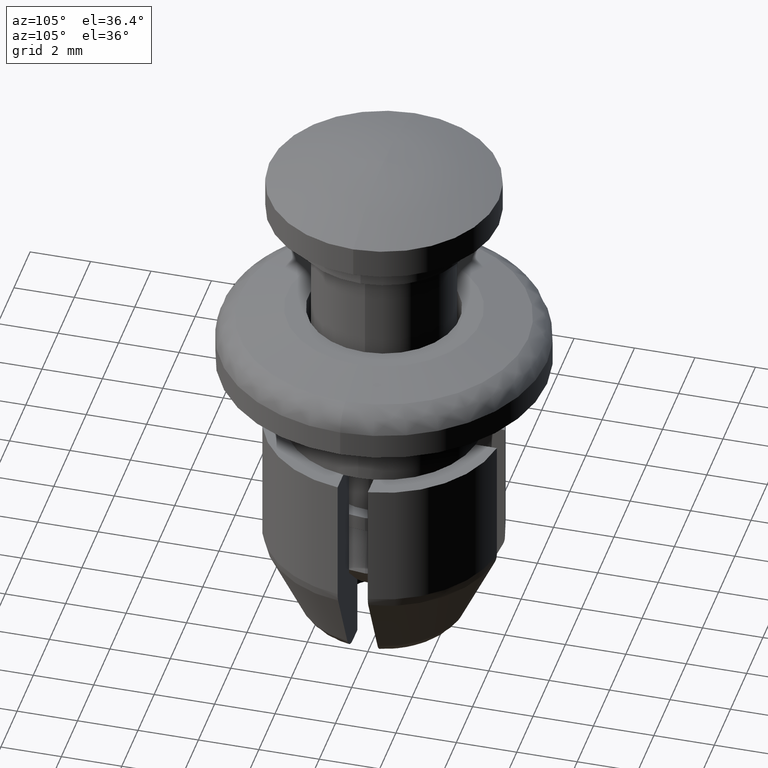
[diagram: clean part render]
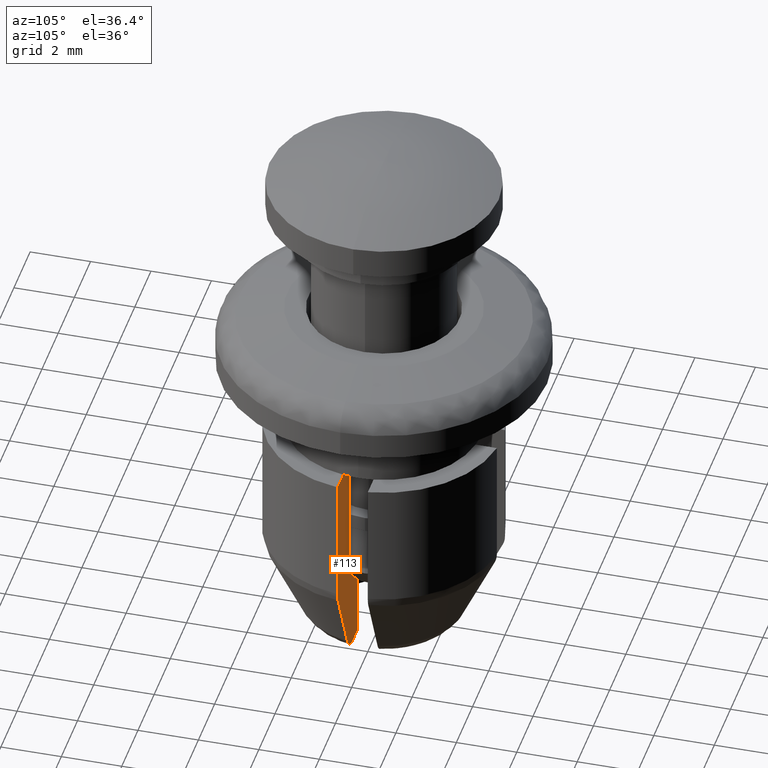
[diagram: same view with one face highlighted and labeled with its STEP entity id]
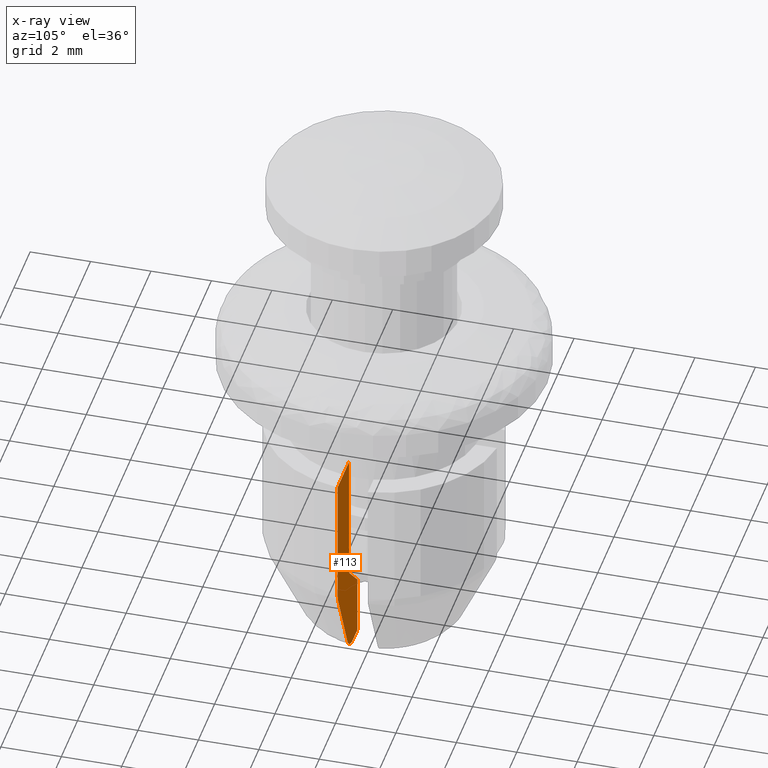
[diagram: x-ray of the same camera — body ghosted, the highlighted face saturated]
A machine part, auxiliary view. The second image highlights one B-rep face of the part: STEP entity #113.
The next image is the same camera in x-ray: the body ghosted, the highlighted face saturated — about 0% of this face is hidden behind the body in this view.
In plain terms, the highlighted planar face has unit normal (0, 1, 0).
Its self-contained STEP definition (entity closure, byte-faithful):
#113=ADVANCED_FACE('',(#202),#201,.T.);
#201=PLANE('',#997);
#202=FACE_OUTER_BOUND('',#998,.T.);
#994=CARTESIAN_POINT('',(1.16894671707E+00,-5.00000000000E-01,-1.26403300000E+01));
#995=DIRECTION('',(0.00000000000E+00,1.00000000000E+00,0.00000000000E+00));
#996=DIRECTION('',(0.00000000000E+00,0.00000000000E+00,1.00000000000E+00));
#997=AXIS2_PLACEMENT_3D('',#994,#995,#996);
#998=EDGE_LOOP('',(#1562,#1563,#1564,#1565,#1566,#1567,#1568,#1569,#1570,#1571));
#1562=ORIENTED_EDGE('',*,*,#1950,.T.);
#1563=ORIENTED_EDGE('',*,*,#1951,.T.);
#1564=ORIENTED_EDGE('',*,*,#1952,.F.);
#1565=ORIENTED_EDGE('',*,*,#1953,.F.);
#1566=ORIENTED_EDGE('',*,*,#1954,.T.);
#1567=ORIENTED_EDGE('',*,*,#1955,.T.);
#1568=ORIENTED_EDGE('',*,*,#1956,.T.);
#1569=ORIENTED_EDGE('',*,*,#1957,.T.);
#1570=ORIENTED_EDGE('',*,*,#1958,.T.);
#1571=ORIENTED_EDGE('',*,*,#1959,.F.);
#1950=EDGE_CURVE('',#2168,#2169,#2170,.T.);
#1951=EDGE_CURVE('',#2169,#2176,#2177,.T.);
#1952=EDGE_CURVE('',#2183,#2176,#2184,.T.);
#1953=EDGE_CURVE('',#2190,#2183,#2191,.T.);
#1954=EDGE_CURVE('',#2190,#2197,#2198,.T.);
#1955=EDGE_CURVE('',#2197,#2204,#2205,.T.);
#1956=EDGE_CURVE('',#2204,#2211,#2212,.T.);
#1957=EDGE_CURVE('',#2211,#2218,#2219,.T.);
#1958=EDGE_CURVE('',#2218,#2225,#2226,.T.);
#1959=EDGE_CURVE('',#2168,#2225,#2232,.T.);
#2168=VERTEX_POINT('',#3447);
#2169=VERTEX_POINT('',#3448);
#2170=(BOUNDED_CURVE() B_SPLINE_CURVE(3,(#3449,#3450,#3451,#3452),.UNSPECIFIED.,.F.,.F.) B_SPLINE_CURVE_WITH_KNOTS((4,4),(7.11021556215E-04,2.15017625232E-03),.UNSPECIFIED.) CURVE() GEOMETRIC_REPRESENTATION_ITEM() RATIONAL_B_SPLINE_CURVE((1.00000000000E+00,1.00000000000E+00,1.00000000000E+00,1.00000000000E+00)) REPRESENTATION_ITEM('') );
#2176=VERTEX_POINT('',#3453);
#2177=LINE('',#3454,#3455);
#2183=VERTEX_POINT('',#3457);
#2184=LINE('',#3458,#3459);
#2190=VERTEX_POINT('',#3461);
#2191=LINE('',#3462,#3463);
#2197=VERTEX_POINT('',#3465);
#2198=LINE('',#3466,#3467);
#2204=VERTEX_POINT('',#3469);
#2205=(BOUNDED_CURVE() B_SPLINE_CURVE(3,(#3470,#3471,#3472,#3473,#3474,#3475),.UNSPECIFIED.,.F.,.F.) B_SPLINE_CURVE_WITH_KNOTS((4,2,4),(2.48735765265E-03,2.65016018147E-03,2.81296271030E-03),.UNSPECIFIED.) CURVE() GEOMETRIC_REPRESENTATION_ITEM() RATIONAL_B_SPLINE_CURVE((1.00000000000E+00,1.00000000000E+00,1.00000000000E+00,1.00000000000E+00,1.00000000000E+00,1.00000000000E+00)) REPRESENTATION_ITEM('') );
#2211=VERTEX_POINT('',#3476);
#2212=(BOUNDED_CURVE() B_SPLINE_CURVE(3,(#3477,#3478,#3479,#3480),.UNSPECIFIED.,.F.,.F.) B_SPLINE_CURVE_WITH_KNOTS((4,4),(5.32152075698E-03,7.98447049075E-03),.UNSPECIFIED.) CURVE() GEOMETRIC_REPRESENTATION_ITEM() RATIONAL_B_SPLINE_CURVE((1.00000000000E+00,1.00000000000E+00,1.00000000000E+00,1.00000000000E+00)) REPRESENTATION_ITEM('') );
#2218=VERTEX_POINT('',#3481);
#2219=(BOUNDED_CURVE() B_SPLINE_CURVE(3,(#3482,#3483,#3484,#3485,#3486,#3487),.UNSPECIFIED.,.F.,.F.) B_SPLINE_CURVE_WITH_KNOTS((4,2,4),(3.08512173195E-03,3.52051880556E-03,3.95591587917E-03),.UNSPECIFIED.) CURVE() GEOMETRIC_REPRESENTATION_ITEM() RATIONAL_B_SPLINE_CURVE((1.00000000000E+00,1.00000000000E+00,1.00000000000E+00,1.00000000000E+00,1.00000000000E+00,1.00000000000E+00)) REPRESENTATION_ITEM('') );
#2225=VERTEX_POINT('',#3488);
#2226=LINE('',#3489,#3490);
#2232=LINE('',#3492,#3493);
#3447=CARTESIAN_POINT('',(1.41430000000E+00,-5.00000000000E-01,-9.90028188233E+00));
#3448=CARTESIAN_POINT('',(2.44948974278E+00,-5.00000000000E-01,-8.90036337678E+00));
#3449=CARTESIAN_POINT('',(1.41430000000E+00,-5.00000000000E-01,-9.90028188233E+00));
#3450=CARTESIAN_POINT('',(1.76336938123E+00,-5.00000000000E-01,-9.57117387874E+00));
#3451=CARTESIAN_POINT('',(2.10680815515E+00,-5.00000000000E-01,-9.23612139036E+00));
#3452=CARTESIAN_POINT('',(2.44948974278E+00,-5.00000000000E-01,-8.90036337678E+00));
#3453=CARTESIAN_POINT('',(2.44948974278E+00,-5.00000000000E-01,-4.50000000000E+00));
#3454=CARTESIAN_POINT('',(2.44948974278E+00,-5.00000000000E-01,-8.90036337678E+00));
#3455=VECTOR('',#3456,4.40036337678E+00);
#3456=DIRECTION('',(0.00000000000E+00,0.00000000000E+00,1.00000000000E+00));
#3457=CARTESIAN_POINT('',(3.16069612586E+00,-5.00000000000E-01,-4.50000000000E+00));
#3458=CARTESIAN_POINT('',(3.16069612586E+00,-5.00000000000E-01,-4.50000000000E+00));
#3459=VECTOR('',#3460,7.11206383073E-01);
#3460=DIRECTION('',(-1.00000000000E+00,0.00000000000E+00,0.00000000000E+00));
#3461=CARTESIAN_POINT('',(3.86781592116E+00,-5.00000000000E-01,-4.50000000000E+00));
#3462=CARTESIAN_POINT('',(3.86781592116E+00,-5.00000000000E-01,-4.50000000000E+00));
#3463=VECTOR('',#3464,7.07119795307E-01);
#3464=DIRECTION('',(-1.00000000000E+00,0.00000000000E+00,0.00000000000E+00));
#3465=CARTESIAN_POINT('',(3.86781592116E+00,-5.00000000000E-01,-8.73390000000E+00));
#3466=CARTESIAN_POINT('',(3.86781592116E+00,-5.00000000000E-01,-4.50000000000E+00));
#3467=VECTOR('',#3468,4.23390000000E+00);
#3468=DIRECTION('',(0.00000000000E+00,0.00000000000E+00,-1.00000000000E+00));
#3469=CARTESIAN_POINT('',(3.79692007949E+00,-5.00000000000E-01,-9.05100000000E+00));
#3470=CARTESIAN_POINT('',(3.86781592116E+00,-5.00000000000E-01,-8.73390000000E+00));
#3471=CARTESIAN_POINT('',(3.86783282926E+00,-5.00000000000E-01,-8.78852727007E+00));
#3472=CARTESIAN_POINT('',(3.86173506569E+00,-5.00000000000E-01,-8.84341748141E+00));
#3473=CARTESIAN_POINT('',(3.83804634033E+00,-5.00000000000E-01,-8.94933185709E+00));
#3474=CARTESIAN_POINT('',(3.82019508988E+00,-5.00000000000E-01,-9.00155392408E+00));
#3475=CARTESIAN_POINT('',(3.79692007949E+00,-5.00000000000E-01,-9.05100000000E+00));
#3476=CARTESIAN_POINT('',(2.65942644146E+00,-5.00000000000E-01,-1.14587841873E+01));
#3477=CARTESIAN_POINT('',(3.79692007949E+00,-5.00000000000E-01,-9.05100000000E+00));
#3478=CARTESIAN_POINT('',(3.41887801935E+00,-5.00000000000E-01,-9.85412300996E+00));
#3479=CARTESIAN_POINT('',(3.04019102778E+00,-5.00000000000E-01,-1.06569424928E+01));
#3480=CARTESIAN_POINT('',(2.65942644146E+00,-5.00000000000E-01,-1.14587841873E+01));
#3481=CARTESIAN_POINT('',(1.95961775865E+00,-5.00000000000E-01,-1.19003000000E+01));
#3482=CARTESIAN_POINT('',(2.65942644146E+00,-5.00000000000E-01,-1.14587841873E+01));
#3483=CARTESIAN_POINT('',(2.59862609398E+00,-5.00000000000E-01,-1.15912016651E+01));
#3484=CARTESIAN_POINT('',(2.49902238861E+00,-5.00000000000E-01,-1.17041160137E+01));
#3485=CARTESIAN_POINT('',(2.25006337384E+00,-5.00000000000E-01,-1.18599891274E+01));
#3486=CARTESIAN_POINT('',(2.10491213051E+00,-5.00000000000E-01,-1.19003000000E+01));
#3487=CARTESIAN_POINT('',(1.95961775865E+00,-5.00000000000E-01,-1.19003000000E+01));
#3488=CARTESIAN_POINT('',(1.41430000000E+00,-5.00000000000E-01,-1.19003000000E+01));
#3489=CARTESIAN_POINT('',(1.95961775865E+00,-5.00000000000E-01,-1.19003000000E+01));
#3490=VECTOR('',#3491,5.45317758646E-01);
#3491=DIRECTION('',(-1.00000000000E+00,0.00000000000E+00,0.00000000000E+00));
#3492=CARTESIAN_POINT('',(1.41430000000E+00,-5.00000000000E-01,-9.90028188233E+00));
#3493=VECTOR('',#3494,2.00001811767E+00);
#3494=DIRECTION('',(0.00000000000E+00,0.00000000000E+00,-1.00000000000E+00));